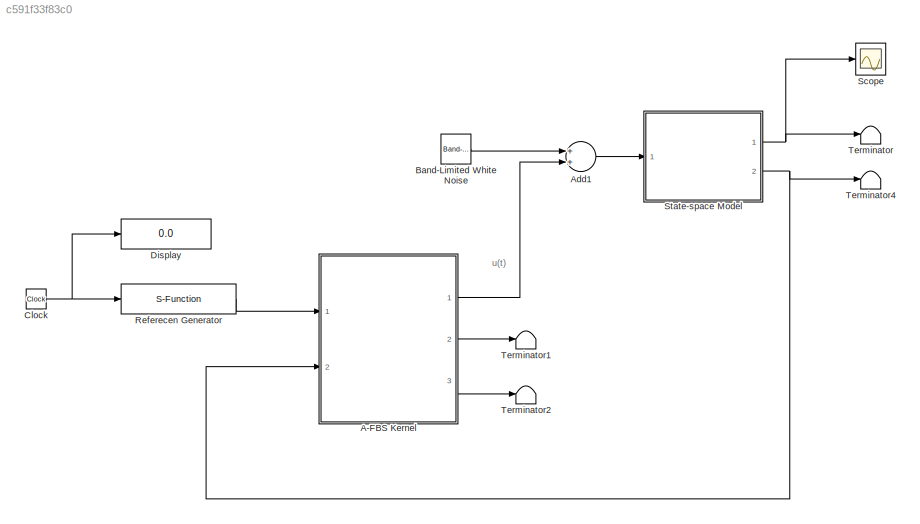
MODEL slx_c591f33f83c0
KIND model
CONFIG AbsTol = auto
CONFIG FixedStep = auto
CONFIG MaxStep = auto
CONFIG MinStep = auto
CONFIG RelTol = 1e-3
CONFIG SampleTimeConstraint = Unconstrained
CONFIG Solver = ode23
CONFIG SolverMode = SingleTasking
CONFIG SolverName = ode23
CONFIG StartTime = 0.0
CONFIG StopTime = simu.time
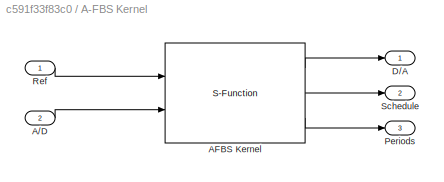
BLOCK [SubSystem] A-FBS Kernel
  Ports = [2, 3]
  RequestExecContextInheritance = off
BLOCK [Inport] A-FBS Kernel/A//D
  IconDisplay = Port number
  Port = 2
BLOCK [S-Function] A-FBS Kernel/AFBS Kernel
  FunctionName = kernel
  Parameters = para
  Ports = [2, 3]
BLOCK [Outport] A-FBS Kernel/D//A
  IconDisplay = Port number
BLOCK [Outport] A-FBS Kernel/Periods
  IconDisplay = Port number
  Port = 3
BLOCK [Inport] A-FBS Kernel/Ref
  IconDisplay = Port number
BLOCK [Outport] A-FBS Kernel/Schedule
  IconDisplay = Port number
  Port = 2
BLOCK [Sum] Add1
  InputSameDT = off
  OutDataTypeStr = Inherit: Inherit via internal rule
  Ports = [2, 1]
  SaturateOnIntegerOverflow = off
BLOCK [Reference] Band-Limited White Noise  REF=simulink/Sources/Band-Limited
White Noise
  Cov = plant.noise_level
  Ports = [0, 1]
  SourceBlock = simulink/Sources/Band-Limited\nWhite Noise
  SourceType = Band-Limited White Noise.
  Ts = plant.noise_sampling_time
  VectorParams1D = on
  seed = [23341]
BLOCK [Clock] Clock
BLOCK [Display] Display
  Decimation = 1
  Format = long
  Ports = [1]
BLOCK [S-Function] Referecen Generator
  FunctionName = sfun_reference_cpp
  Ports = [1, 1]
BLOCK [Scope] Scope
  Floating = off
  LimitDataPoints = off
  NumInputPorts = 1
  Ports = [1]
  ZoomMode = xonly
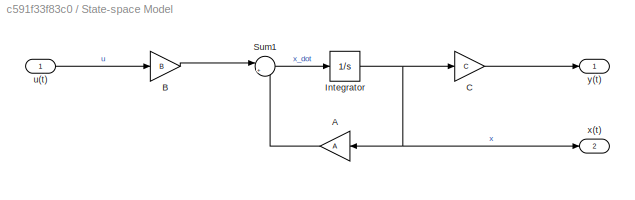
BLOCK [SubSystem] State-space Model
  Ports = [1, 2]
  RequestExecContextInheritance = off
BLOCK [Gain] State-space Model/A
  Gain = A
  Multiplication = Matrix(K*u)
  OutDataTypeStr = Inherit: Inherit via internal rule
  ParamDataTypeStr = Inherit: Inherit via internal rule
  SaturateOnIntegerOverflow = off
BLOCK [Gain] State-space Model/B
  Gain = B
  Multiplication = Matrix(K*u)
  OutDataTypeStr = Inherit: Inherit via internal rule
  ParamDataTypeStr = Inherit: Inherit via internal rule
  SaturateOnIntegerOverflow = off
BLOCK [Gain] State-space Model/C
  Gain = C
  Multiplication = Matrix(K*u)
  OutDataTypeStr = Inherit: Inherit via internal rule
  ParamDataTypeStr = Inherit: Inherit via internal rule
  SaturateOnIntegerOverflow = off
BLOCK [Integrator] State-space Model/Integrator
  Ports = [1, 1]
BLOCK [Sum] State-space Model/Sum1
  IconShape = round
  InputSameDT = off
  Inputs = |++
  OutDataTypeStr = Inherit: Inherit via internal rule
  Ports = [2, 1]
  SaturateOnIntegerOverflow = off
BLOCK [Inport] State-space Model/u(t)
  IconDisplay = Port number
BLOCK [Outport] State-space Model/x(t)
  IconDisplay = Port number
  Port = 2
BLOCK [Outport] State-space Model/y(t)
  IconDisplay = Port number
BLOCK [Terminator] Terminator
BLOCK [Terminator] Terminator1
BLOCK [Terminator] Terminator2
BLOCK [Terminator] Terminator4
ANNOTATION (root): u(t)
LINE A-FBS Kernel/A//D:1 -> A-FBS Kernel/AFBS Kernel:2
LINE A-FBS Kernel/AFBS Kernel:1 -> A-FBS Kernel/D//A:1
LINE A-FBS Kernel/AFBS Kernel:2 -> A-FBS Kernel/Schedule:1
LINE A-FBS Kernel/AFBS Kernel:3 -> A-FBS Kernel/Periods:1
LINE A-FBS Kernel/Ref:1 -> A-FBS Kernel/AFBS Kernel:1
LINE A-FBS Kernel:1 -> Add1:2
LINE A-FBS Kernel:2 -> Terminator1:1
LINE A-FBS Kernel:3 -> Terminator2:1
LINE Add1:1 -> State-space Model:1
LINE Band-Limited White Noise:1 -> Add1:1
NET Clock:1 -> Display:1, Referecen Generator:1
LINE Referecen Generator:1 -> A-FBS Kernel:1
LINE State-space Model/A:1 -> State-space Model/Sum1:2
LINE State-space Model/B:1 -> State-space Model/Sum1:1
LINE State-space Model/C:1 -> State-space Model/y(t):1
NET State-space Model/Integrator:1 -> State-space Model/A:1, State-space Model/C:1, State-space Model/x(t):1
LINE State-space Model/Sum1:1 -> State-space Model/Integrator:1
LINE State-space Model/u(t):1 -> State-space Model/B:1
NET State-space Model:1 -> Scope:1, Terminator:1
NET State-space Model:2 -> A-FBS Kernel:2, Terminator4:1
note: NET lines group one-source signal fan-out (src -> all destinations, sorted); 1:1 wires keep LINE
